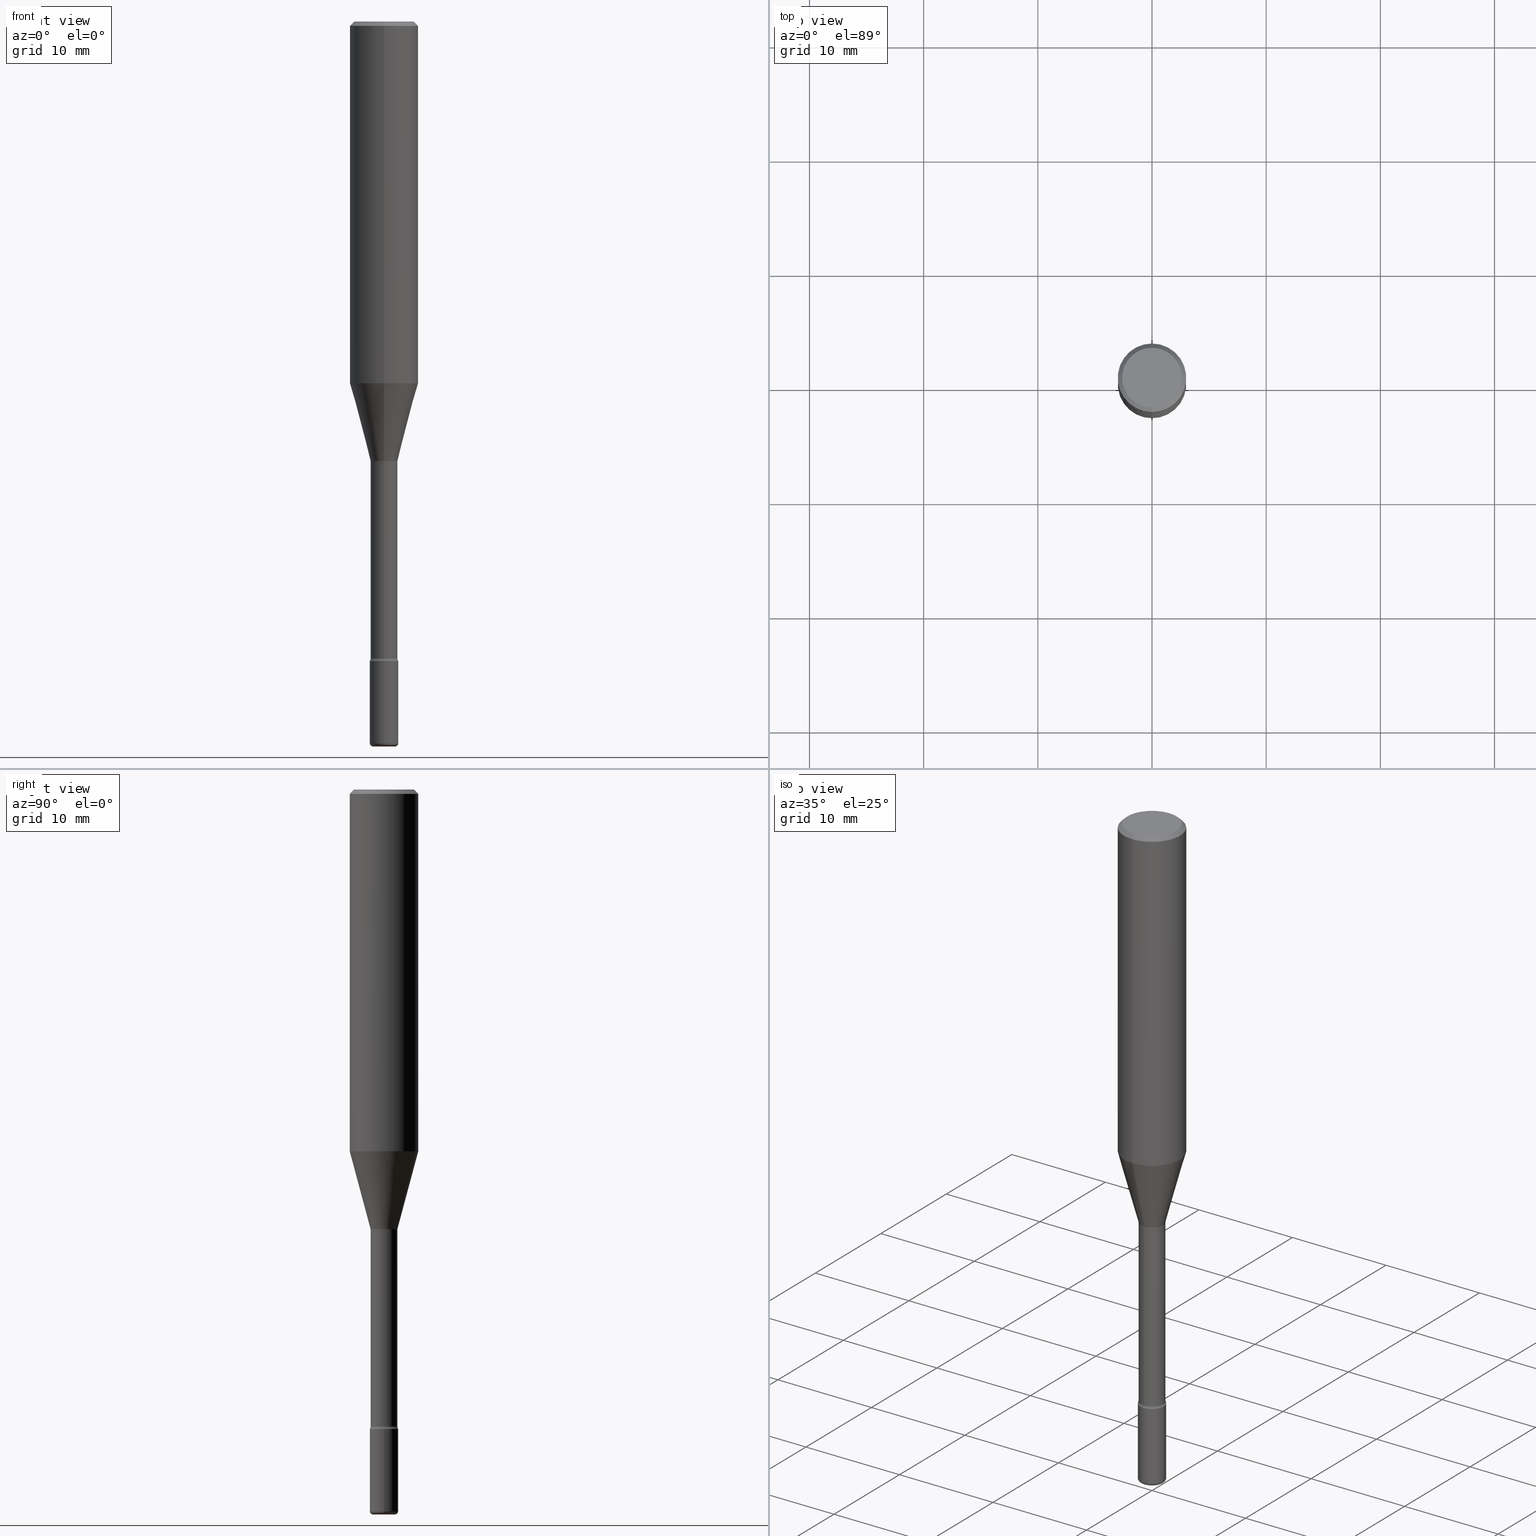
[diagram: canonical four-view strip — front | top / right | iso, engineering-drawing reading convention]
A machine part, canonical four-view strip (front | top / right | iso — engineering-drawing reading convention). The complete STEP part file that produces these views, byte-faithful:
ISO-10303-21;
HEADER;
FILE_DESCRIPTION (( 'STEP AP203' ),
    '1' );
FILE_NAME ('05342.STEP',
    '2024-03-06T20:02:01',
    ( '' ),
    ( '' ),
    'SwSTEP 2.0',
    'SolidWorks 2023',
    '' );
FILE_SCHEMA (( 'CONFIG_CONTROL_DESIGN' ));
ENDSEC;

DATA;
#1 = VECTOR ( 'NONE', #26, 39.37007874015748143 ) ;
#2 = DIRECTION ( 'NONE',  ( -2.445468806185136597E-29, 3.491481338843145583E-15, 1.000000000000000000 ) ) ;
#3 = CARTESIAN_POINT ( 'NONE',  ( -4.277064640082308048E-16, -0.06125000000000776351, -2.195767055356714348 ) ) ;
#4 = AXIS2_PLACEMENT_3D ( 'NONE', #336, #280, #553 ) ;
#5 = DIRECTION ( 'NONE',  ( -6.982962677686265922E-15, -1.000000000000000000, 5.906698364679479320E-15 ) ) ;
#6 = EDGE_CURVE ( 'NONE', #207, #192, #478, .T. ) ;
#7 = DIRECTION ( 'NONE',  ( -2.445721087227316555E-29, 3.491120058031798950E-15, 1.000000000000000000 ) ) ;
#8 = ORIENTED_EDGE ( 'NONE', *, *, #261, .T. ) ;
#9 = CARTESIAN_POINT ( 'NONE',  ( 0.000000000000000000, 0.000000000000000000, 0.000000000000000000 ) ) ;
#10 = EDGE_LOOP ( 'NONE', ( #159, #208, #152, #121 ) ) ;
#11 = CIRCLE ( 'NONE', #398, 0.1180999999999999966 ) ;
#12 = ORIENTED_EDGE ( 'NONE', *, *, #369, .T. ) ;
#13 = DIRECTION ( 'NONE',  ( 2.445721087227315994E-29, -3.491120058031798950E-15, -1.000000000000000000 ) ) ;
#14 = EDGE_CURVE ( 'NONE', #510, #496, #199, .T. ) ;
#15 = EDGE_LOOP ( 'NONE', ( #315, #129 ) ) ;
#16 = COORDINATED_UNIVERSAL_TIME_OFFSET ( 5, 0, .BEHIND. ) ;
#17 = DIRECTION ( 'NONE',  ( -1.000000000000000000, 6.982962677686265922E-15, -4.883557194083112901E-29 ) ) ;
#18 = EDGE_LOOP ( 'NONE', ( #362, #418, #48, #323 ) ) ;
#19 = AXIS2_PLACEMENT_3D ( 'NONE', #9, #355, #451 ) ;
#20 = FACE_OUTER_BOUND ( 'NONE', #211, .T. ) ;
#21 = CIRCLE ( 'NONE', #368, 0.03739999999999999575 ) ;
#22 = CC_DESIGN_DATE_AND_TIME_ASSIGNMENT ( #419, #464, ( #502 ) ) ;
#23 = CARTESIAN_POINT ( 'NONE',  ( 2.611628041455274383E-16, 0.03739999999999126662, -2.500000000000000000 ) ) ;
#24 = CC_DESIGN_PERSON_AND_ORGANIZATION_ASSIGNMENT ( #190, #363, ( #502 ) ) ;
#25 = CIRCLE ( 'NONE', #371, 0.03739999999999999575 ) ;
#26 = DIRECTION ( 'NONE',  ( -2.445468806185136877E-29, 3.491481338843145188E-15, 1.000000000000000000 ) ) ;
#27 = EDGE_CURVE ( 'NONE', #192, #201, #278, .T. ) ;
#28 = ORIENTED_EDGE ( 'NONE', *, *, #332, .F. ) ;
#29 = CARTESIAN_POINT ( 'NONE',  ( 4.352074256531156888E-16, 0.06124999999999242856, -2.195767055356715236 ) ) ;
#30 = ADVANCED_FACE ( 'NONE', ( #258 ), #249, .T. ) ;
#31 = ORIENTED_EDGE ( 'NONE', *, *, #247, .F. ) ;
#32 = FACE_OUTER_BOUND ( 'NONE', #473, .T. ) ;
#33 = ADVANCED_FACE ( 'NONE', ( #385 ), #130, .T. ) ;
#34 = DIRECTION ( 'NONE',  ( -2.438088387897960049E-29, 3.491481338843145188E-15, 1.000000000000000000 ) ) ;
#35 = CARTESIAN_POINT ( 'NONE',  ( -1.169113584055446105E-44, 1.669184350826100908E-30, 4.780733988912460139E-16 ) ) ;
#36 = FACE_OUTER_BOUND ( 'NONE', #316, .T. ) ;
#37 = AXIS2_PLACEMENT_3D ( 'NONE', #484, #482, #122 ) ;
#38 = CARTESIAN_POINT ( 'NONE',  ( -1.169113584055446105E-44, 1.669184350826100908E-30, 4.780733988912460139E-16 ) ) ;
#39 = CIRCLE ( 'NONE', #356, 0.01500000000000002720 ) ;
#40 = FACE_OUTER_BOUND ( 'NONE', #557, .T. ) ;
#41 = CIRCLE ( 'NONE', #136, 0.1180999999999999966 ) ;
#42 = CARTESIAN_POINT ( 'NONE',  ( 5.392081281010064608E-29, -7.696872391942708362E-15, -2.204700000000000326 ) ) ;
#43 = CARTESIAN_POINT ( 'NONE',  ( 5.370233789924947093E-29, -7.665686409721247305E-15, -2.195767055356714792 ) ) ;
#44 = EDGE_CURVE ( 'NONE', #195, #308, #167, .T. ) ;
#45 = CLOSED_SHELL ( 'NONE', ( #271, #75, #439, #509, #360, #566, #506, #466, #304, #483, #88, #374, #30, #477 ) ) ;
#46 = FACE_OUTER_BOUND ( 'NONE', #277, .T. ) ;
#47 = ORIENTED_EDGE ( 'NONE', *, *, #520, .T. ) ;
#48 = ORIENTED_EDGE ( 'NONE', *, *, #445, .T. ) ;
#49 =( NAMED_UNIT ( * ) PLANE_ANGLE_UNIT ( ) SI_UNIT ( $, .RADIAN. ) );
#50 = EDGE_LOOP ( 'NONE', ( #145, #524, #406, #72 ) ) ;
#51 = AXIS2_PLACEMENT_3D ( 'NONE', #412, #488, #270 ) ;
#52 = DIRECTION ( 'NONE',  ( 1.000000000000000000, -6.982962677686261977E-15, 0.000000000000000000 ) ) ;
#53 = LINE ( 'NONE', #174, #379 ) ;
#54 = ORIENTED_EDGE ( 'NONE', *, *, #500, .F. ) ;
#55 = EDGE_LOOP ( 'NONE', ( #429, #92 ) ) ;
#56 = MECHANICAL_CONTEXT ( 'NONE', #341, 'mechanical' ) ;
#57 = DIRECTION ( 'NONE',  ( -2.445721087227316555E-29, 3.491120058031798950E-15, 1.000000000000000000 ) ) ;
#58 = ORIENTED_EDGE ( 'NONE', *, *, #268, .F. ) ;
#59 = ORIENTED_EDGE ( 'NONE', *, *, #148, .T. ) ;
#60 = APPROVAL_STATUS ( 'not_yet_approved' ) ;
#61 = DIRECTION ( 'NONE',  ( 1.000000000000000000, -6.982962677686266711E-15, 4.876176775795935793E-29 ) ) ;
#62 = APPLICATION_PROTOCOL_DEFINITION ( 'international standard', 'config_control_design', 1994, #341 ) ;
#63 = TOROIDAL_SURFACE ( 'NONE', #73, 0.03739999999999999575, 0.01180000000000034494 ) ;
#64 = DIRECTION ( 'NONE',  ( -2.445721087227316555E-29, 3.491120058031798950E-15, 1.000000000000000000 ) ) ;
#65 = DIRECTION ( 'NONE',  ( -2.445468806185136597E-29, 3.491481338843145583E-15, 1.000000000000000000 ) ) ;
#66 = DATE_AND_TIME ( #185, #349 ) ;
#67 = DIRECTION ( 'NONE',  ( -2.445468806185136597E-29, 3.491481338843145583E-15, 1.000000000000000000 ) ) ;
#68 = EDGE_CURVE ( 'NONE', #496, #96, #103, .T. ) ;
#69 = DIRECTION ( 'NONE',  ( -1.000000000000000000, 6.982962677686265922E-15, -4.876176775795935793E-29 ) ) ;
#70 = COORDINATED_UNIVERSAL_TIME_OFFSET ( 5, 0, .BEHIND. ) ;
#71 = CARTESIAN_POINT ( 'NONE',  ( 3.668581630840980928E-31, -5.236680087047708706E-17, -0.01500000000000002720 ) ) ;
#72 = ORIENTED_EDGE ( 'NONE', *, *, #140, .F. ) ;
#73 = AXIS2_PLACEMENT_3D ( 'NONE', #342, #2, #256 ) ;
#74 = AXIS2_PLACEMENT_3D ( 'NONE', #475, #90, #101 ) ;
#75 = ADVANCED_FACE ( 'NONE', ( #85 ), #219, .T. ) ;
#76 = DIRECTION ( 'NONE',  ( -6.982962677686265922E-15, -1.000000000000000000, 3.491120058031800528E-15 ) ) ;
#77 = DESIGN_CONTEXT ( 'detailed design', #228, 'design' ) ;
#78 = CARTESIAN_POINT ( 'NONE',  ( 3.322576887801829239E-16, 0.04676111260565870426, -1.513792501787273537 ) ) ;
#79 = DIRECTION ( 'NONE',  ( -2.445721087227316555E-29, 3.491120058031798950E-15, 1.000000000000000000 ) ) ;
#80 = DIRECTION ( 'NONE',  ( -6.982962677686265922E-15, -1.000000000000000000, 3.487819265831411744E-15 ) ) ;
#81 = CARTESIAN_POINT ( 'NONE',  ( 7.723156721521011834E-16, 0.1031000000000000111, -3.887509258146911569E-16 ) ) ;
#82 = ORIENTED_EDGE ( 'NONE', *, *, #395, .T. ) ;
#83 = DIRECTION ( 'NONE',  ( -6.982962677686265922E-15, -1.000000000000000000, 5.552536572488340164E-15 ) ) ;
#84 = AXIS2_PLACEMENT_3D ( 'NONE', #348, #486, #526 ) ;
#85 = FACE_OUTER_BOUND ( 'NONE', #461, .T. ) ;
#86 = DIRECTION ( 'NONE',  ( -6.982962677686265922E-15, -1.000000000000000000, 3.491120058031799739E-15 ) ) ;
#87 = DIRECTION ( 'NONE',  ( -6.982962677686265922E-15, -1.000000000000000000, 5.842136427980041740E-15 ) ) ;
#88 = ADVANCED_FACE ( 'NONE', ( #426 ), #205, .F. ) ;
#89 = DIRECTION ( 'NONE',  ( -1.000000000000000000, 7.105427357601038146E-15, 0.000000000000000000 ) ) ;
#90 = DIRECTION ( 'NONE',  ( -2.445468806185136597E-29, 3.491481338843145583E-15, 1.000000000000000000 ) ) ;
#91 = DIRECTION ( 'NONE',  ( 2.445721087227316555E-29, -3.491120058031798950E-15, -1.000000000000000000 ) ) ;
#92 = ORIENTED_EDGE ( 'NONE', *, *, #500, .T. ) ;
#93 = ORIENTED_EDGE ( 'NONE', *, *, #319, .T. ) ;
#94 = PLANE ( 'NONE',  #408 ) ;
#95 = CIRCLE ( 'NONE', #427, 0.01500000000000001853 ) ;
#96 = VERTEX_POINT ( 'NONE', #194 ) ;
#97 = ADVANCED_BREP_SHAPE_REPRESENTATION ( '05342', ( #493, #115, #4 ), #421 ) ;
#98 = ORIENTED_EDGE ( 'NONE', *, *, #533, .F. ) ;
#99 = DIRECTION ( 'NONE',  ( -2.445721087227316555E-29, 3.491120058031798950E-15, 1.000000000000000000 ) ) ;
#100 = EDGE_LOOP ( 'NONE', ( #229, #186, #12, #567 ) ) ;
#101 = DIRECTION ( 'NONE',  ( 1.000000000000000000, -6.982962677686260400E-15, 0.000000000000000000 ) ) ;
#102 = AXIS2_PLACEMENT_3D ( 'NONE', #43, #7, #5 ) ;
#103 = CIRCLE ( 'NONE', #133, 0.1180999999999999966 ) ;
#104 = LINE ( 'NONE', #424, #414 ) ;
#105 = ORIENTED_EDGE ( 'NONE', *, *, #6, .F. ) ;
#106 = PRODUCT_RELATED_PRODUCT_CATEGORY ( 'detail', '', ( #322 ) ) ;
#107 = EDGE_LOOP ( 'NONE', ( #248, #411, #377, #31 ) ) ;
#108 = SHAPE_DEFINITION_REPRESENTATION ( #143, #97 ) ;
#109 = CONICAL_SURFACE ( 'NONE', #438, 0.1180999999999999966, 0.7853981633974481680 ) ;
#110 = DIRECTION ( 'NONE',  ( -2.445721087227316555E-29, 3.491120058031798950E-15, 1.000000000000000000 ) ) ;
#111 = ORIENTED_EDGE ( 'NONE', *, *, #319, .F. ) ;
#112 = VERTEX_POINT ( 'NONE', #328 ) ;
#113 = PERSON_AND_ORGANIZATION ( #390, #165 ) ;
#114 = DIRECTION ( 'NONE',  ( 1.000000000000000000, -6.982962677686252511E-15, 4.883557194083107856E-29 ) ) ;
#115 = MANIFOLD_SOLID_BREP ( 'Body-Move/Copy2[2]', #45 ) ;
#116 = TOROIDAL_SURFACE ( 'NONE', #314, 0.06124999999999999889, 0.01500000000000001506 ) ;
#117 = ORIENTED_EDGE ( 'NONE', *, *, #332, .T. ) ;
#118 = APPROVAL_STATUS ( 'not_yet_approved' ) ;
#119 = CARTESIAN_POINT ( 'NONE',  ( 3.051164599389650582E-29, -4.355354332476965725E-15, -1.247552149476176764 ) ) ;
#120 = AXIS2_PLACEMENT_3D ( 'NONE', #23, #556, #69 ) ;
#121 = ORIENTED_EDGE ( 'NONE', *, *, #450, .F. ) ;
#122 = DIRECTION ( 'NONE',  ( -6.982962677686265922E-15, -1.000000000000000000, 5.906698364679479320E-15 ) ) ;
#123 = CIRCLE ( 'NONE', #51, 0.1031000000000000111 ) ;
#124 = CIRCLE ( 'NONE', #74, 0.04920000000000000762 ) ;
#125 = DIRECTION ( 'NONE',  ( -2.445721087227316555E-29, 3.491120058031798950E-15, 1.000000000000000000 ) ) ;
#126 = CARTESIAN_POINT ( 'NONE',  ( 8.246878922347483612E-16, 0.1180999999999999411, -0.01500000000000044006 ) ) ;
#127 = ORIENTED_EDGE ( 'NONE', *, *, #282, .T. ) ;
#128 = DIRECTION ( 'NONE',  ( -6.982962677686265922E-15, -1.000000000000000000, 5.842136427980041740E-15 ) ) ;
#129 = ORIENTED_EDGE ( 'NONE', *, *, #187, .F. ) ;
#130 = PLANE ( 'NONE',  #173 ) ;
#131 = CARTESIAN_POINT ( 'NONE',  ( 0.04920000000000017415, -9.031065631051680405E-15, -2.488199999999999967 ) ) ;
#132 = APPROVAL ( #153, 'UNSPECIFIED' ) ;
#133 = AXIS2_PLACEMENT_3D ( 'NONE', #487, #260, #389 ) ;
#134 = EDGE_CURVE ( 'NONE', #415, #112, #21, .T. ) ;
#135 = EDGE_CURVE ( 'NONE', #201, #192, #571, .T. ) ;
#136 = AXIS2_PLACEMENT_3D ( 'NONE', #119, #64, #479 ) ;
#137 = DIRECTION ( 'NONE',  ( 6.982962677686265922E-15, 1.000000000000000000, -3.491120058031798950E-15 ) ) ;
#138 = CARTESIAN_POINT ( 'NONE',  ( 7.199434520694541042E-16, 0.1031000000000000111, -1.353060024532617206E-16 ) ) ;
#139 = CIRCLE ( 'NONE', #217, 0.04624999999999999944 ) ;
#140 = EDGE_CURVE ( 'NONE', #207, #403, #124, .T. ) ;
#141 = CARTESIAN_POINT ( 'NONE',  ( -0.03739999999999999575, -8.421760884135237702E-15, -2.488199999999999967 ) ) ;
#142 = VECTOR ( 'NONE', #331, 39.37007874015748143 ) ;
#143 = PRODUCT_DEFINITION_SHAPE ( 'NONE', 'NONE',  #502 ) ;
#144 = ORIENTED_EDGE ( 'NONE', *, *, #234, .F. ) ;
#145 = ORIENTED_EDGE ( 'NONE', *, *, #541, .F. ) ;
#146 = AXIS2_PLACEMENT_3D ( 'NONE', #227, #231, #407 ) ;
#147 = PERSON_AND_ORGANIZATION ( #390, #165 ) ;
#148 = EDGE_CURVE ( 'NONE', #181, #413, #431, .T. ) ;
#149 = AXIS2_PLACEMENT_3D ( 'NONE', #446, #562, #76 ) ;
#150 = CARTESIAN_POINT ( 'NONE',  ( 3.711809231253478318E-29, -5.298384892084059115E-15, -1.517674787463811237 ) ) ;
#151 = EDGE_LOOP ( 'NONE', ( #504, #547 ) ) ;
#152 = ORIENTED_EDGE ( 'NONE', *, *, #268, .T. ) ;
#153 = APPROVAL_STATUS ( 'not_yet_approved' ) ;
#154 = CARTESIAN_POINT ( 'NONE',  ( -4.277064640082466314E-16, -0.06125000000000530020, -1.517674787463811015 ) ) ;
#155 = ADVANCED_FACE ( 'NONE', ( #420 ), #160, .T. ) ;
#156 = COORDINATED_UNIVERSAL_TIME_OFFSET ( 5, 0, .BEHIND. ) ;
#157 = LINE ( 'NONE', #474, #1 ) ;
#158 = AXIS2_PLACEMENT_3D ( 'NONE', #141, #320, #89 ) ;
#159 = ORIENTED_EDGE ( 'NONE', *, *, #495, .F. ) ;
#160 = CYLINDRICAL_SURFACE ( 'NONE', #452, 0.04920000000000000068 ) ;
#161 = EDGE_CURVE ( 'NONE', #460, #180, #551, .T. ) ;
#162 = CARTESIAN_POINT ( 'NONE',  ( -8.246878922347475723E-16, -0.1181000000000000522, -0.01499999999999961607 ) ) ;
#163 = UNCERTAINTY_MEASURE_WITH_UNIT (LENGTH_MEASURE( 1.000000000000000082E-05 ), #317, 'distance_accuracy_value', 'NONE');
#164 = DIRECTION ( 'NONE',  ( -2.445721087227316555E-29, 3.491120058031798950E-15, 1.000000000000000000 ) ) ;
#165 = ORGANIZATION ( 'UNSPECIFIED', 'UNSPECIFIED', '' ) ;
#166 = LINE ( 'NONE', #126, #519 ) ;
#167 = CIRCLE ( 'NONE', #494, 0.1180999999999999966 ) ;
#168 = CYLINDRICAL_SURFACE ( 'NONE', #146, 0.1180999999999999966 ) ;
#169 = CIRCLE ( 'NONE', #221, 0.01180000000000034494 ) ;
#170 = CARTESIAN_POINT ( 'NONE',  ( -8.102248135368174406E-16, -0.1181000000000000522, -0.01499999999999961607 ) ) ;
#171 = EDGE_CURVE ( 'NONE', #380, #413, #422, .T. ) ;
#172 = CARTESIAN_POINT ( 'NONE',  ( -3.229620238429526702E-16, -0.04625000000000530076, -1.517674787463811015 ) ) ;
#173 = AXIS2_PLACEMENT_3D ( 'NONE', #266, #34, #309 ) ;
#174 = CARTESIAN_POINT ( 'NONE',  ( 8.391509709326781971E-16, 0.1180999999999999966, 6.577212003769061022E-17 ) ) ;
#175 = CARTESIAN_POINT ( 'NONE',  ( 3.702314243307729011E-29, -5.284831366687687522E-15, -1.513792501787273315 ) ) ;
#176 = ORIENTED_EDGE ( 'NONE', *, *, #135, .T. ) ;
#177 = ORIENTED_EDGE ( 'NONE', *, *, #397, .T. ) ;
#178 = CARTESIAN_POINT ( 'NONE',  ( 3.711809231253478318E-29, -5.298384892084059115E-15, -1.517674787463811237 ) ) ;
#179 = AXIS2_PLACEMENT_3D ( 'NONE', #218, #527, #386 ) ;
#180 = VERTEX_POINT ( 'NONE', #200 ) ;
#181 = VERTEX_POINT ( 'NONE', #417 ) ;
#182 = DIRECTION ( 'NONE',  ( -2.445721087227316555E-29, 3.491120058031798950E-15, 1.000000000000000000 ) ) ;
#183 = ORIENTED_EDGE ( 'NONE', *, *, #204, .T. ) ;
#184 = ORIENTED_EDGE ( 'NONE', *, *, #401, .T. ) ;
#185 = CALENDAR_DATE ( 2024, 6, 3 ) ;
#186 = ORIENTED_EDGE ( 'NONE', *, *, #392, .T. ) ;
#187 = EDGE_CURVE ( 'NONE', #112, #415, #25, .T. ) ;
#188 = AXIS2_PLACEMENT_3D ( 'NONE', #485, #346, #128 ) ;
#189 = ORIENTED_EDGE ( 'NONE', *, *, #44, .T. ) ;
#190 = PERSON_AND_ORGANIZATION ( #390, #165 ) ;
#191 = CARTESIAN_POINT ( 'NONE',  ( 6.113672015462842613E-29, -8.728703347107864943E-15, -2.500000000000000000 ) ) ;
#192 = VERTEX_POINT ( 'NONE', #550 ) ;
#193 = CONICAL_SURFACE ( 'NONE', #409, 0.1180999999999999966, 0.7853981633974481680 ) ;
#194 = CARTESIAN_POINT ( 'NONE',  ( -8.246878922347172998E-16, -0.1181000000000043126, -1.247552149476176320 ) ) ;
#195 = VERTEX_POINT ( 'NONE', #162 ) ;
#196 = CALENDAR_DATE ( 2024, 6, 3 ) ;
#197 = CLOSED_SHELL ( 'NONE', ( #155, #410, #33, #301, #275, #540 ) ) ;
#198 = SECURITY_CLASSIFICATION_LEVEL ( 'unclassified' ) ;
#199 = LINE ( 'NONE', #78, #436 ) ;
#200 = CARTESIAN_POINT ( 'NONE',  ( -7.587710785535310407E-16, -0.1031000000000000111, 3.311180301514658338E-16 ) ) ;
#201 = VERTEX_POINT ( 'NONE', #286 ) ;
#202 = ORIENTED_EDGE ( 'NONE', *, *, #369, .F. ) ;
#203 = FACE_OUTER_BOUND ( 'NONE', #15, .T. ) ;
#204 = EDGE_CURVE ( 'NONE', #433, #413, #347, .T. ) ;
#205 = PLANE ( 'NONE',  #507 ) ;
#206 = LOCAL_TIME ( 15, 2, 1.000000000000000000, #330 ) ;
#207 = VERTEX_POINT ( 'NONE', #325 ) ;
#208 = ORIENTED_EDGE ( 'NONE', *, *, #68, .T. ) ;
#209 = DIRECTION ( 'NONE',  ( 1.000000000000000000, -6.982962677686250933E-15, 0.000000000000000000 ) ) ;
#210 = VECTOR ( 'NONE', #339, 39.37007874015748143 ) ;
#211 = EDGE_LOOP ( 'NONE', ( #358, #283, #183, #542 ) ) ;
#212 = CARTESIAN_POINT ( 'NONE',  ( 5.392081281010064608E-29, -7.696872391942708362E-15, -2.204700000000000326 ) ) ;
#213 = CIRCLE ( 'NONE', #361, 0.01500000000000002720 ) ;
#214 = DIRECTION ( 'NONE',  ( -6.982962677686265922E-15, -1.000000000000000000, 3.491120058031800528E-15 ) ) ;
#215 = CARTESIAN_POINT ( 'NONE',  ( -3.265311040923994566E-16, -0.04676111260566927219, -1.513792501787273093 ) ) ;
#216 = CIRCLE ( 'NONE', #37, 0.04625000000000006883 ) ;
#217 = AXIS2_PLACEMENT_3D ( 'NONE', #178, #99, #399 ) ;
#218 = CARTESIAN_POINT ( 'NONE',  ( 5.369679839523838347E-29, -7.666479698224534368E-15, -2.195767055356714792 ) ) ;
#219 = CYLINDRICAL_SURFACE ( 'NONE', #149, 0.04625000000000003414 ) ;
#220 = DIRECTION ( 'NONE',  ( 4.937700262164546464E-15, 0.7071067811865447972, -0.7071067811865500152 ) ) ;
#221 = AXIS2_PLACEMENT_3D ( 'NONE', #290, #518, #340 ) ;
#222 = DIRECTION ( 'NONE',  ( -2.445721087227316555E-29, 3.491120058031798950E-15, 1.000000000000000000 ) ) ;
#223 = EDGE_CURVE ( 'NONE', #545, #522, #213, .T. ) ;
#224 = FACE_OUTER_BOUND ( 'NONE', #405, .T. ) ;
#225 = VECTOR ( 'NONE', #306, 39.37007874015748143 ) ;
#226 = AXIS2_PLACEMENT_3D ( 'NONE', #35, #430, #214 ) ;
#227 = CARTESIAN_POINT ( 'NONE',  ( -1.169113584055446105E-44, 1.669184350826100908E-30, 4.780733988912460139E-16 ) ) ;
#228 = APPLICATION_CONTEXT ( 'configuration controlled 3d designs of mechanical parts and assemblies' ) ;
#229 = ORIENTED_EDGE ( 'NONE', *, *, #14, .F. ) ;
#230 = ORIENTED_EDGE ( 'NONE', *, *, #44, .F. ) ;
#231 = DIRECTION ( 'NONE',  ( -2.445721087227316555E-29, 3.491120058031798950E-15, 1.000000000000000000 ) ) ;
#232 = CIRCLE ( 'NONE', #302, 0.04920000000000000068 ) ;
#233 = EDGE_LOOP ( 'NONE', ( #144, #111, #255, #47 ) ) ;
#234 = EDGE_CURVE ( 'NONE', #510, #433, #95, .T. ) ;
#235 = ORIENTED_EDGE ( 'NONE', *, *, #397, .F. ) ;
#236 = APPLICATION_PROTOCOL_DEFINITION ( 'international standard', 'config_control_design', 1994, #228 ) ;
#237 = EDGE_CURVE ( 'NONE', #545, #433, #253, .T. ) ;
#238 = CARTESIAN_POINT ( 'NONE',  ( 0.000000000000000000, 0.000000000000000000, 0.000000000000000000 ) ) ;
#239 = PERSON_AND_ORGANIZATION ( #390, #165 ) ;
#240 = DIRECTION ( 'NONE',  ( -6.982962677686263555E-15, -1.000000000000000000, 0.000000000000000000 ) ) ;
#241 = SECURITY_CLASSIFICATION ( '', '', #198 ) ;
#242 = CC_DESIGN_SECURITY_CLASSIFICATION ( #241, ( #459 ) ) ;
#243 = APPROVAL_DATE_TIME ( #293, #394 ) ;
#244 = AXIS2_PLACEMENT_3D ( 'NONE', #154, #17, #240 ) ;
#245 = PLANE ( 'NONE',  #120 ) ;
#246 = PERSON_AND_ORGANIZATION_ROLE ( 'design_supplier' ) ;
#247 = EDGE_CURVE ( 'NONE', #415, #403, #169, .T. ) ;
#248 = ORIENTED_EDGE ( 'NONE', *, *, #134, .T. ) ;
#249 = CYLINDRICAL_SURFACE ( 'NONE', #226, 0.04625000000000003414 ) ;
#250 = FACE_OUTER_BOUND ( 'NONE', #18, .T. ) ;
#251 = VECTOR ( 'NONE', #267, 39.37007874015748854 ) ;
#252 = ORIENTED_EDGE ( 'NONE', *, *, #223, .T. ) ;
#253 = LINE ( 'NONE', #560, #142 ) ;
#254 = CC_DESIGN_APPROVAL ( #132, ( #459 ) ) ;
#255 = ORIENTED_EDGE ( 'NONE', *, *, #171, .T. ) ;
#256 = DIRECTION ( 'NONE',  ( 1.000000000000000000, -6.982962677686252511E-15, 4.883557194083107856E-29 ) ) ;
#257 = AXIS2_PLACEMENT_3D ( 'NONE', #425, #457, #52 ) ;
#258 = FACE_OUTER_BOUND ( 'NONE', #499, .T. ) ;
#259 = CARTESIAN_POINT ( 'NONE',  ( 3.702314243307729011E-29, -5.284831366687687522E-15, -1.513792501787273315 ) ) ;
#260 = DIRECTION ( 'NONE',  ( -2.445721087227316555E-29, 3.491120058031798950E-15, 1.000000000000000000 ) ) ;
#261 = EDGE_CURVE ( 'NONE', #403, #201, #157, .T. ) ;
#262 = DIRECTION ( 'NONE',  ( -6.982962677686265922E-15, -1.000000000000000000, 5.842136427980041740E-15 ) ) ;
#263 = AXIS2_PLACEMENT_3D ( 'NONE', #175, #274, #453 ) ;
#264 = DIRECTION ( 'NONE',  ( -6.982962677686265922E-15, -1.000000000000000000, 5.552536572488340164E-15 ) ) ;
#265 = APPROVAL_PERSON_ORGANIZATION ( #476, #503, #365 ) ;
#266 = CARTESIAN_POINT ( 'NONE',  ( 5.391525076996371277E-29, -7.697668907747483125E-15, -2.204700000000000326 ) ) ;
#267 = DIRECTION ( 'NONE',  ( -4.851104656540962697E-15, -0.7071067811865497932, -0.7071067811865451302 ) ) ;
#268 = EDGE_CURVE ( 'NONE', #96, #195, #104, .T. ) ;
#269 = CARTESIAN_POINT ( 'NONE',  ( 5.857043298564459926E-16, 0.04676111260565870426, -1.513792501787273537 ) ) ;
#270 = DIRECTION ( 'NONE',  ( -6.982962677686265922E-15, -1.000000000000000000, 3.491120058031798950E-15 ) ) ;
#271 = ADVANCED_FACE ( 'NONE', ( #20 ), #382, .F. ) ;
#272 = CARTESIAN_POINT ( 'NONE',  ( -3.435617637421105364E-16, -0.04920000000000771673, -2.204699999999999882 ) ) ;
#273 = ORIENTED_EDGE ( 'NONE', *, *, #520, .F. ) ;
#274 = DIRECTION ( 'NONE',  ( -2.445721087227316555E-29, 3.491120058031798950E-15, 1.000000000000000000 ) ) ;
#275 = ADVANCED_FACE ( 'NONE', ( #465 ), #318, .T. ) ;
#276 = CIRCLE ( 'NONE', #158, 0.01180000000000034494 ) ;
#277 = EDGE_LOOP ( 'NONE', ( #105, #454, #8, #375 ) ) ;
#278 = CIRCLE ( 'NONE', #400, 0.04920000000000000068 ) ;
#279 = EDGE_LOOP ( 'NONE', ( #176, #298 ) ) ;
#280 = DIRECTION ( 'NONE',  ( 0.000000000000000000, 0.000000000000000000, 1.000000000000000000 ) ) ;
#281 = CARTESIAN_POINT ( 'NONE',  ( -3.229620238429900424E-16, -0.04625000000000003414, 6.395377015752169353E-16 ) ) ;
#282 = EDGE_CURVE ( 'NONE', #96, #496, #41, .T. ) ;
#283 = ORIENTED_EDGE ( 'NONE', *, *, #234, .T. ) ;
#284 = CIRCLE ( 'NONE', #188, 0.04676111260566399169 ) ;
#285 = DATE_AND_TIME ( #548, #561 ) ;
#286 = CARTESIAN_POINT ( 'NONE',  ( 0.04920000000000000068, -8.041230671489647649E-15, -2.204700000000000326 ) ) ;
#287 = ORIENTED_EDGE ( 'NONE', *, *, #495, .T. ) ;
#288 = PERSON_AND_ORGANIZATION_ROLE ( 'creator' ) ;
#289 = CC_DESIGN_PERSON_AND_ORGANIZATION_ASSIGNMENT ( #147, #546, ( #241 ) ) ;
#290 = CARTESIAN_POINT ( 'NONE',  ( 0.03739999999999999575, -8.948666671454982281E-15, -2.488199999999999967 ) ) ;
#291 = CARTESIAN_POINT ( 'NONE',  ( 6.113672015462842613E-29, -8.728703347107864943E-15, -2.500000000000000000 ) ) ;
#292 = APPROVAL_PERSON_ORGANIZATION ( #521, #132, #511 ) ;
#293 = DATE_AND_TIME ( #416, #470 ) ;
#294 = DIRECTION ( 'NONE',  ( -2.445721087227316555E-29, 3.491120058031798950E-15, 1.000000000000000000 ) ) ;
#295 = ORIENTED_EDGE ( 'NONE', *, *, #14, .T. ) ;
#296 = AXIS2_PLACEMENT_3D ( 'NONE', #370, #334, #114 ) ;
#297 = DIRECTION ( 'NONE',  ( -6.982962677686265922E-15, -1.000000000000000000, 3.491120058031798950E-15 ) ) ;
#298 = ORIENTED_EDGE ( 'NONE', *, *, #27, .T. ) ;
#299 = DIRECTION ( 'NONE',  ( 1.000000000000000000, -6.982962677686261977E-15, 0.000000000000000000 ) ) ;
#300 = FACE_OUTER_BOUND ( 'NONE', #10, .T. ) ;
#301 = ADVANCED_FACE ( 'NONE', ( #203 ), #245, .T. ) ;
#302 = AXIS2_PLACEMENT_3D ( 'NONE', #212, #222, #83 ) ;
#303 = CC_DESIGN_APPROVAL ( #503, ( #241 ) ) ;
#304 = ADVANCED_FACE ( 'NONE', ( #250 ), #109, .T. ) ;
#305 = DIRECTION ( 'NONE',  ( -6.982962677686265922E-15, -1.000000000000000000, 3.487819265831411744E-15 ) ) ;
#306 = DIRECTION ( 'NONE',  ( -1.807323732225327773E-15, -0.2588190451025178529, 0.9659258262890690894 ) ) ;
#307 = LINE ( 'NONE', #215, #225 ) ;
#308 = VERTEX_POINT ( 'NONE', #531 ) ;
#309 = DIRECTION ( 'NONE',  ( 1.000000000000000000, -6.982962677686265922E-15, 4.876176775795935793E-29 ) ) ;
#310 = FACE_OUTER_BOUND ( 'NONE', #107, .T. ) ;
#311 = DIRECTION ( 'NONE',  ( -6.982962677686265922E-15, -1.000000000000000000, 3.491120058031798950E-15 ) ) ;
#312 = CARTESIAN_POINT ( 'NONE',  ( 8.391509709327088641E-16, 0.1180999999999956807, -1.247552149476177430 ) ) ;
#313 = DIRECTION ( 'NONE',  ( -2.445721087227316555E-29, 3.491120058031798950E-15, 1.000000000000000000 ) ) ;
#314 = AXIS2_PLACEMENT_3D ( 'NONE', #501, #313, #311 ) ;
#315 = ORIENTED_EDGE ( 'NONE', *, *, #134, .F. ) ;
#316 = EDGE_LOOP ( 'NONE', ( #127, #287, #230, #58 ) ) ;
#317 =( CONVERSION_BASED_UNIT ( 'INCH', #404 ) LENGTH_UNIT ( ) NAMED_UNIT ( #456 ) );
#318 = TOROIDAL_SURFACE ( 'NONE', #296, 0.03739999999999999575, 0.01180000000000034494 ) ;
#319 = EDGE_CURVE ( 'NONE', #380, #510, #284, .T. ) ;
#320 = DIRECTION ( 'NONE',  ( 7.105427357601001859E-15, 1.000000000000000000, -3.491481338843145583E-15 ) ) ;
#321 = TOROIDAL_SURFACE ( 'NONE', #335, 0.06125000000000009603, 0.01500000000000002373 ) ;
#322 = PRODUCT ( '05342', '05342', '', ( #56 ) ) ;
#323 = ORIENTED_EDGE ( 'NONE', *, *, #450, .T. ) ;
#324 = ORIENTED_EDGE ( 'NONE', *, *, #533, .T. ) ;
#325 = CARTESIAN_POINT ( 'NONE',  ( -0.04920000000000017415, -8.337916841315544070E-15, -2.488199999999999967 ) ) ;
#326 = ORIENTED_EDGE ( 'NONE', *, *, #148, .F. ) ;
#327 = CC_DESIGN_PERSON_AND_ORGANIZATION_ASSIGNMENT ( #113, #423, ( #322 ) ) ;
#328 = CARTESIAN_POINT ( 'NONE',  ( -0.03739999999999999575, -8.400438602624566206E-15, -2.500000000000000000 ) ) ;
#329 = CC_DESIGN_DATE_AND_TIME_ASSIGNMENT ( #66, #428, ( #241 ) ) ;
#330 = COORDINATED_UNIVERSAL_TIME_OFFSET ( 5, 0, .BEHIND. ) ;
#331 = DIRECTION ( 'NONE',  ( -2.445721087227316555E-29, 3.491120058031798950E-15, 1.000000000000000000 ) ) ;
#332 = EDGE_CURVE ( 'NONE', #181, #545, #216, .T. ) ;
#333 = APPROVAL_DATE_TIME ( #285, #503 ) ;
#334 = DIRECTION ( 'NONE',  ( -2.445468806185136597E-29, 3.491481338843145583E-15, 1.000000000000000000 ) ) ;
#335 = AXIS2_PLACEMENT_3D ( 'NONE', #396, #391, #384 ) ;
#336 = CARTESIAN_POINT ( 'NONE',  ( 0.000000000000000000, 0.000000000000000000, 0.000000000000000000 ) ) ;
#337 = ORIENTED_EDGE ( 'NONE', *, *, #6, .T. ) ;
#338 = DIRECTION ( 'NONE',  ( -2.445721087227316555E-29, 3.491120058031798950E-15, 1.000000000000000000 ) ) ;
#339 = DIRECTION ( 'NONE',  ( -2.445468806185136877E-29, 3.491481338843145188E-15, 1.000000000000000000 ) ) ;
#340 = DIRECTION ( 'NONE',  ( 1.000000000000000000, -6.982962677686343230E-15, 0.000000000000000000 ) ) ;
#341 = APPLICATION_CONTEXT ( 'configuration controlled 3d designs of mechanical parts and assemblies' ) ;
#342 = CARTESIAN_POINT ( 'NONE',  ( 6.084815483549856310E-29, -8.687503867309514303E-15, -2.488199999999999967 ) ) ;
#343 = CIRCLE ( 'NONE', #367, 0.04920000000000000068 ) ;
#344 = CARTESIAN_POINT ( 'NONE',  ( 3.286260152891002704E-16, 0.04624999999999469813, -1.517674787463811459 ) ) ;
#345 = AXIS2_PLACEMENT_3D ( 'NONE', #565, #554, #469 ) ;
#346 = DIRECTION ( 'NONE',  ( -2.445721087227316555E-29, 3.491120058031798950E-15, 1.000000000000000000 ) ) ;
#347 = CIRCLE ( 'NONE', #463, 0.04624999999999999944 ) ;
#348 = CARTESIAN_POINT ( 'NONE',  ( 6.084815483549856310E-29, -8.687503867309514303E-15, -2.488199999999999967 ) ) ;
#349 = LOCAL_TIME ( 15, 2, 1.000000000000000000, #555 ) ;
#350 = CARTESIAN_POINT ( 'NONE',  ( 3.495870259940232839E-16, 0.04919999999999231932, -2.204700000000000326 ) ) ;
#351 = EDGE_CURVE ( 'NONE', #180, #195, #444, .T. ) ;
#352 = CARTESIAN_POINT ( 'NONE',  ( 3.702314243307729011E-29, -5.284831366687687522E-15, -1.513792501787273315 ) ) ;
#353 = FACE_OUTER_BOUND ( 'NONE', #55, .T. ) ;
#354 = CARTESIAN_POINT ( 'NONE',  ( 3.435617637422181666E-16, 0.04919999999999229851, -2.204700000000000326 ) ) ;
#355 = DIRECTION ( 'NONE',  ( -2.445468806185136597E-29, 3.491481338843145583E-15, 1.000000000000000000 ) ) ;
#356 = AXIS2_PLACEMENT_3D ( 'NONE', #3, #440, #529 ) ;
#357 = EDGE_LOOP ( 'NONE', ( #467, #337, #515, #508 ) ) ;
#358 = ORIENTED_EDGE ( 'NONE', *, *, #392, .F. ) ;
#359 = CYLINDRICAL_SURFACE ( 'NONE', #19, 0.04920000000000000068 ) ;
#360 = ADVANCED_FACE ( 'NONE', ( #36 ), #530, .T. ) ;
#361 = AXIS2_PLACEMENT_3D ( 'NONE', #29, #523, #434 ) ;
#362 = ORIENTED_EDGE ( 'NONE', *, *, #351, .F. ) ;
#363 = PERSON_AND_ORGANIZATION_ROLE ( 'creator' ) ;
#364 = DIRECTION ( 'NONE',  ( -6.982962677686265922E-15, -1.000000000000000000, 3.491120058031798950E-15 ) ) ;
#365 = APPROVAL_ROLE ( '' ) ;
#366 = DIRECTION ( 'NONE',  ( -2.445468806185136597E-29, 3.491481338843145583E-15, 1.000000000000000000 ) ) ;
#367 = AXIS2_PLACEMENT_3D ( 'NONE', #42, #568, #264 ) ;
#368 = AXIS2_PLACEMENT_3D ( 'NONE', #291, #65, #498 ) ;
#369 = EDGE_CURVE ( 'NONE', #380, #96, #307, .T. ) ;
#370 = CARTESIAN_POINT ( 'NONE',  ( 6.084815483549856310E-29, -8.687503867309514303E-15, -2.488199999999999967 ) ) ;
#371 = AXIS2_PLACEMENT_3D ( 'NONE', #191, #366, #209 ) ;
#372 = PERSON_AND_ORGANIZATION ( #390, #165 ) ;
#373 = CARTESIAN_POINT ( 'NONE',  ( 4.352074256530983831E-16, 0.06124999999999469064, -1.517674787463811459 ) ) ;
#374 = ADVANCED_FACE ( 'NONE', ( #32 ), #532, .F. ) ;
#375 = ORIENTED_EDGE ( 'NONE', *, *, #27, .F. ) ;
#376 = CALENDAR_DATE ( 2024, 6, 3 ) ;
#377 = ORIENTED_EDGE ( 'NONE', *, *, #448, .F. ) ;
#378 = DIRECTION ( 'NONE',  ( -6.982962677686265922E-15, -1.000000000000000000, 5.906698364679487997E-15 ) ) ;
#379 = VECTOR ( 'NONE', #543, 39.37007874015748143 ) ;
#380 = VERTEX_POINT ( 'NONE', #569 ) ;
#381 = DIRECTION ( 'NONE',  ( -2.445468806185136597E-29, 3.491481338843145583E-15, 1.000000000000000000 ) ) ;
#382 = TOROIDAL_SURFACE ( 'NONE', #544, 0.06124999999999999889, 0.01500000000000001506 ) ;
#383 = EDGE_LOOP ( 'NONE', ( #54, #537, #189, #497 ) ) ;
#384 = DIRECTION ( 'NONE',  ( -6.982962677686265922E-15, -1.000000000000000000, 3.491120058031798950E-15 ) ) ;
#385 = FACE_OUTER_BOUND ( 'NONE', #279, .T. ) ;
#386 = DIRECTION ( 'NONE',  ( -6.982962677686265922E-15, -1.000000000000000000, 3.491120058031798950E-15 ) ) ;
#387 = CC_DESIGN_PERSON_AND_ORGANIZATION_ASSIGNMENT ( #468, #246, ( #459 ) ) ;
#388 = CONICAL_SURFACE ( 'NONE', #481, 0.04676111260566399169, 0.2617993877991499074 ) ;
#389 = DIRECTION ( 'NONE',  ( -6.982962677686265922E-15, -1.000000000000000000, 4.626330217890369336E-15 ) ) ;
#390 = PERSON ( 'UNSPECIFIED', 'UNSPECIFIED', 'UNSPECIFIED', ('UNSPECIFIED'), ('UNSPECIFIED'), ('UNSPECIFIED') ) ;
#391 = DIRECTION ( 'NONE',  ( -2.445721087227316555E-29, 3.491120058031798950E-15, 1.000000000000000000 ) ) ;
#392 = EDGE_CURVE ( 'NONE', #510, #380, #570, .T. ) ;
#393 = DIRECTION ( 'NONE',  ( 6.982962677686265922E-15, 1.000000000000000000, -3.487819265831411744E-15 ) ) ;
#394 = APPROVAL ( #60, 'UNSPECIFIED' ) ;
#395 = EDGE_CURVE ( 'NONE', #513, #522, #343, .T. ) ;
#396 = CARTESIAN_POINT ( 'NONE',  ( 5.369679839523838347E-29, -7.666479698224534368E-15, -2.195767055356714792 ) ) ;
#397 = EDGE_CURVE ( 'NONE', #181, #513, #39, .T. ) ;
#398 = AXIS2_PLACEMENT_3D ( 'NONE', #572, #164, #305 ) ;
#399 = DIRECTION ( 'NONE',  ( -6.982962677686265922E-15, -1.000000000000000000, 5.906698364679487997E-15 ) ) ;
#400 = AXIS2_PLACEMENT_3D ( 'NONE', #558, #67, #299 ) ;
#401 = EDGE_CURVE ( 'NONE', #522, #513, #232, .T. ) ;
#402 = FACE_OUTER_BOUND ( 'NONE', #383, .T. ) ;
#403 = VERTEX_POINT ( 'NONE', #131 ) ;
#404 = LENGTH_MEASURE_WITH_UNIT ( LENGTH_MEASURE( 0.02539999999999999897 ), #458 );
#405 = EDGE_LOOP ( 'NONE', ( #93, #295, #480, #202 ) ) ;
#406 = ORIENTED_EDGE ( 'NONE', *, *, #247, .T. ) ;
#407 = DIRECTION ( 'NONE',  ( -6.982962677686265922E-15, -1.000000000000000000, 3.491120058031799739E-15 ) ) ;
#408 = AXIS2_PLACEMENT_3D ( 'NONE', #138, #13, #137 ) ;
#409 = AXIS2_PLACEMENT_3D ( 'NONE', #489, #91, #449 ) ;
#410 = ADVANCED_FACE ( 'NONE', ( #310 ), #63, .T. ) ;
#411 = ORIENTED_EDGE ( 'NONE', *, *, #541, .T. ) ;
#412 = CARTESIAN_POINT ( 'NONE',  ( 7.059760297607168192E-46, -1.004289602807351628E-31, -2.881644783161265537E-17 ) ) ;
#413 = VERTEX_POINT ( 'NONE', #172 ) ;
#414 = VECTOR ( 'NONE', #57, 39.37007874015748143 ) ;
#415 = VERTEX_POINT ( 'NONE', #437 ) ;
#416 = CALENDAR_DATE ( 2024, 6, 3 ) ;
#417 = CARTESIAN_POINT ( 'NONE',  ( -3.229620238429365971E-16, -0.04625000000000773631, -2.195767055356714348 ) ) ;
#418 = ORIENTED_EDGE ( 'NONE', *, *, #161, .F. ) ;
#419 = DATE_AND_TIME ( #196, #538 ) ;
#420 = FACE_OUTER_BOUND ( 'NONE', #357, .T. ) ;
#421 =( GEOMETRIC_REPRESENTATION_CONTEXT ( 3 ) GLOBAL_UNCERTAINTY_ASSIGNED_CONTEXT ( ( #163 ) ) GLOBAL_UNIT_ASSIGNED_CONTEXT ( ( #317, #49, #535 ) ) REPRESENTATION_CONTEXT ( 'NONE', 'WORKASPACE' ) );
#422 = CIRCLE ( 'NONE', #244, 0.01500000000000001853 ) ;
#423 = PERSON_AND_ORGANIZATION_ROLE ( 'design_owner' ) ;
#424 = CARTESIAN_POINT ( 'NONE',  ( -8.246878922347479668E-16, -0.1180999999999999966, 8.903746777448015409E-16 ) ) ;
#425 = CARTESIAN_POINT ( 'NONE',  ( 5.391525076996371277E-29, -7.697668907747483125E-15, -2.204700000000000326 ) ) ;
#426 = FACE_OUTER_BOUND ( 'NONE', #151, .T. ) ;
#427 = AXIS2_PLACEMENT_3D ( 'NONE', #373, #462, #512 ) ;
#428 = DATE_TIME_ROLE ( 'classification_date' ) ;
#429 = ORIENTED_EDGE ( 'NONE', *, *, #161, .T. ) ;
#430 = DIRECTION ( 'NONE',  ( -2.445721087227316555E-29, 3.491120058031798950E-15, 1.000000000000000000 ) ) ;
#431 = LINE ( 'NONE', #281, #534 ) ;
#432 = DATE_AND_TIME ( #376, #206 ) ;
#433 = VERTEX_POINT ( 'NONE', #344 ) ;
#434 = DIRECTION ( 'NONE',  ( 7.105427357600997914E-15, 1.000000000000000000, 0.000000000000000000 ) ) ;
#435 = CIRCLE ( 'NONE', #84, 0.04920000000000000762 ) ;
#436 = VECTOR ( 'NONE', #525, 39.37007874015748854 ) ;
#437 = CARTESIAN_POINT ( 'NONE',  ( 0.03739999999999999575, -8.989866151253329765E-15, -2.500000000000000000 ) ) ;
#438 = AXIS2_PLACEMENT_3D ( 'NONE', #71, #441, #393 ) ;
#439 = ADVANCED_FACE ( 'NONE', ( #40 ), #321, .F. ) ;
#440 = DIRECTION ( 'NONE',  ( -1.000000000000000000, 6.982962677686265922E-15, -4.883557194083112901E-29 ) ) ;
#441 = DIRECTION ( 'NONE',  ( 2.445721087227316555E-29, -3.491120058031798950E-15, -1.000000000000000000 ) ) ;
#442 = AXIS2_PLACEMENT_3D ( 'NONE', #259, #447, #262 ) ;
#443 = CARTESIAN_POINT ( 'NONE',  ( 3.668581630840980928E-31, -5.236680087047708706E-17, -0.01500000000000002720 ) ) ;
#444 = LINE ( 'NONE', #170, #251 ) ;
#445 = EDGE_CURVE ( 'NONE', #460, #308, #166, .T. ) ;
#446 = CARTESIAN_POINT ( 'NONE',  ( -1.169113584055446105E-44, 1.669184350826100908E-30, 4.780733988912460139E-16 ) ) ;
#447 = DIRECTION ( 'NONE',  ( -2.445721087227316555E-29, 3.491120058031798950E-15, 1.000000000000000000 ) ) ;
#448 = EDGE_CURVE ( 'NONE', #403, #207, #435, .T. ) ;
#449 = DIRECTION ( 'NONE',  ( 6.982962677686265922E-15, 1.000000000000000000, -3.487819265831411744E-15 ) ) ;
#450 = EDGE_CURVE ( 'NONE', #308, #195, #11, .T. ) ;
#451 = DIRECTION ( 'NONE',  ( 1.000000000000000000, -6.982962677686266711E-15, 4.876176775795935793E-29 ) ) ;
#452 = AXIS2_PLACEMENT_3D ( 'NONE', #238, #381, #61 ) ;
#453 = DIRECTION ( 'NONE',  ( -6.982962677686265922E-15, -1.000000000000000000, 5.842136427980041740E-15 ) ) ;
#454 = ORIENTED_EDGE ( 'NONE', *, *, #140, .T. ) ;
#455 = ORIENTED_EDGE ( 'NONE', *, *, #237, .T. ) ;
#456 = DIMENSIONAL_EXPONENTS ( 1.000000000000000000, 0.000000000000000000, 0.000000000000000000, 0.000000000000000000, 0.000000000000000000, 0.000000000000000000, 0.000000000000000000 ) ;
#457 = DIRECTION ( 'NONE',  ( -2.445468806185136597E-29, 3.491481338843145583E-15, 1.000000000000000000 ) ) ;
#458 =( LENGTH_UNIT ( ) NAMED_UNIT ( * ) SI_UNIT ( $, .METRE. ) );
#459 = PRODUCT_DEFINITION_FORMATION_WITH_SPECIFIED_SOURCE ( 'ANY', '', #322, .NOT_KNOWN. ) ;
#460 = VERTEX_POINT ( 'NONE', #81 ) ;
#461 = EDGE_LOOP ( 'NONE', ( #117, #455, #273, #326 ) ) ;
#462 = DIRECTION ( 'NONE',  ( 1.000000000000000000, -7.105427357601001070E-15, 4.926311084128190142E-29 ) ) ;
#463 = AXIS2_PLACEMENT_3D ( 'NONE', #150, #294, #378 ) ;
#464 = DATE_TIME_ROLE ( 'creation_date' ) ;
#465 = FACE_OUTER_BOUND ( 'NONE', #50, .T. ) ;
#466 = ADVANCED_FACE ( 'NONE', ( #300 ), #168, .T. ) ;
#467 = ORIENTED_EDGE ( 'NONE', *, *, #448, .T. ) ;
#468 = PERSON_AND_ORGANIZATION ( #390, #165 ) ;
#469 = DIRECTION ( 'NONE',  ( -6.982962677686265922E-15, -1.000000000000000000, 3.491120058031798950E-15 ) ) ;
#470 = LOCAL_TIME ( 15, 2, 1.000000000000000000, #70 ) ;
#471 = ORIENTED_EDGE ( 'NONE', *, *, #204, .F. ) ;
#472 = APPROVAL_ROLE ( '' ) ;
#473 = EDGE_LOOP ( 'NONE', ( #563, #28, #177, #82 ) ) ;
#474 = CARTESIAN_POINT ( 'NONE',  ( 0.04920000000000000068, -3.435617637421643269E-16, 2.399078973691600472E-30 ) ) ;
#475 = CARTESIAN_POINT ( 'NONE',  ( 6.084815483549856310E-29, -8.687503867309514303E-15, -2.488199999999999967 ) ) ;
#476 = PERSON_AND_ORGANIZATION ( #390, #165 ) ;
#477 = ADVANCED_FACE ( 'NONE', ( #536 ), #116, .F. ) ;
#478 = LINE ( 'NONE', #564, #210 ) ;
#479 = DIRECTION ( 'NONE',  ( -6.982962677686265922E-15, -1.000000000000000000, 4.626330217890369336E-15 ) ) ;
#480 = ORIENTED_EDGE ( 'NONE', *, *, #282, .F. ) ;
#481 = AXIS2_PLACEMENT_3D ( 'NONE', #352, #182, #87 ) ;
#482 = DIRECTION ( 'NONE',  ( -2.445721087227316555E-29, 3.491120058031798950E-15, 1.000000000000000000 ) ) ;
#483 = ADVANCED_FACE ( 'NONE', ( #353 ), #94, .F. ) ;
#484 = CARTESIAN_POINT ( 'NONE',  ( 5.370233789924947093E-29, -7.665686409721247305E-15, -2.195767055356714792 ) ) ;
#485 = CARTESIAN_POINT ( 'NONE',  ( 3.702314243307729011E-29, -5.284831366687687522E-15, -1.513792501787273315 ) ) ;
#486 = DIRECTION ( 'NONE',  ( -2.445468806185136597E-29, 3.491481338843145583E-15, 1.000000000000000000 ) ) ;
#487 = CARTESIAN_POINT ( 'NONE',  ( 3.051164599389650582E-29, -4.355354332476965725E-15, -1.247552149476176764 ) ) ;
#488 = DIRECTION ( 'NONE',  ( -2.445721087227316555E-29, 3.491120058031798950E-15, 1.000000000000000000 ) ) ;
#489 = CARTESIAN_POINT ( 'NONE',  ( 3.668581630840980928E-31, -5.236680087047708706E-17, -0.01500000000000002720 ) ) ;
#490 = CC_DESIGN_APPROVAL ( #394, ( #502 ) ) ;
#491 = FACE_OUTER_BOUND ( 'NONE', #100, .T. ) ;
#492 = CC_DESIGN_PERSON_AND_ORGANIZATION_ASSIGNMENT ( #372, #288, ( #459 ) ) ;
#493 = MANIFOLD_SOLID_BREP ( 'Body-Move/Copy2[1]', #197 ) ;
#494 = AXIS2_PLACEMENT_3D ( 'NONE', #443, #125, #80 ) ;
#495 = EDGE_CURVE ( 'NONE', #496, #308, #53, .T. ) ;
#496 = VERTEX_POINT ( 'NONE', #312 ) ;
#497 = ORIENTED_EDGE ( 'NONE', *, *, #445, .F. ) ;
#498 = DIRECTION ( 'NONE',  ( 1.000000000000000000, -6.982962677686250933E-15, 0.000000000000000000 ) ) ;
#499 = EDGE_LOOP ( 'NONE', ( #552, #324, #59, #471 ) ) ;
#500 = EDGE_CURVE ( 'NONE', #180, #460, #123, .T. ) ;
#501 = CARTESIAN_POINT ( 'NONE',  ( 3.711426350676407396E-29, -5.298933198862634268E-15, -1.517674787463811237 ) ) ;
#502 = PRODUCT_DEFINITION ( 'UNKNOWN', '', #459, #77 ) ;
#503 = APPROVAL ( #118, 'UNSPECIFIED' ) ;
#504 = ORIENTED_EDGE ( 'NONE', *, *, #395, .F. ) ;
#505 = APPROVAL_PERSON_ORGANIZATION ( #239, #394, #472 ) ;
#506 = ADVANCED_FACE ( 'NONE', ( #491 ), #388, .T. ) ;
#507 = AXIS2_PLACEMENT_3D ( 'NONE', #354, #514, #364 ) ;
#508 = ORIENTED_EDGE ( 'NONE', *, *, #261, .F. ) ;
#509 = ADVANCED_FACE ( 'NONE', ( #402 ), #193, .T. ) ;
#510 = VERTEX_POINT ( 'NONE', #269 ) ;
#511 = APPROVAL_ROLE ( '' ) ;
#512 = DIRECTION ( 'NONE',  ( 7.105427357600998703E-15, 1.000000000000000000, 0.000000000000000000 ) ) ;
#513 = VERTEX_POINT ( 'NONE', #272 ) ;
#514 = DIRECTION ( 'NONE',  ( -2.445721087227315994E-29, 3.491120058031798950E-15, 1.000000000000000000 ) ) ;
#515 = ORIENTED_EDGE ( 'NONE', *, *, #135, .F. ) ;
#516 = APPROVAL_DATE_TIME ( #432, #132 ) ;
#517 = CARTESIAN_POINT ( 'NONE',  ( 3.711426350676407396E-29, -5.298933198862634268E-15, -1.517674787463811237 ) ) ;
#518 = DIRECTION ( 'NONE',  ( -6.982962677686266711E-15, -1.000000000000000000, 3.491481338843145583E-15 ) ) ;
#519 = VECTOR ( 'NONE', #220, 39.37007874015748854 ) ;
#520 = EDGE_CURVE ( 'NONE', #413, #433, #139, .T. ) ;
#521 = PERSON_AND_ORGANIZATION ( #390, #165 ) ;
#522 = VERTEX_POINT ( 'NONE', #350 ) ;
#523 = DIRECTION ( 'NONE',  ( 1.000000000000000000, -7.105427357601001070E-15, 4.926311084128190142E-29 ) ) ;
#524 = ORIENTED_EDGE ( 'NONE', *, *, #187, .T. ) ;
#525 = DIRECTION ( 'NONE',  ( 1.839019923739597554E-15, 0.2588190451025245697, 0.9659258262890670910 ) ) ;
#526 = DIRECTION ( 'NONE',  ( 1.000000000000000000, -6.982962677686260400E-15, 0.000000000000000000 ) ) ;
#527 = DIRECTION ( 'NONE',  ( -2.445721087227316555E-29, 3.491120058031798950E-15, 1.000000000000000000 ) ) ;
#528 = CIRCLE ( 'NONE', #102, 0.04625000000000006883 ) ;
#529 = DIRECTION ( 'NONE',  ( -6.982962677686263555E-15, -1.000000000000000000, 0.000000000000000000 ) ) ;
#530 = CYLINDRICAL_SURFACE ( 'NONE', #549, 0.1180999999999999966 ) ;
#531 = CARTESIAN_POINT ( 'NONE',  ( 8.391509709327088641E-16, 0.1180999999999999411, -0.01500000000000044006 ) ) ;
#532 = TOROIDAL_SURFACE ( 'NONE', #179, 0.06125000000000009603, 0.01500000000000002373 ) ;
#533 = EDGE_CURVE ( 'NONE', #545, #181, #528, .T. ) ;
#534 = VECTOR ( 'NONE', #338, 39.37007874015748143 ) ;
#535 =( NAMED_UNIT ( * ) SI_UNIT ( $, .STERADIAN. ) SOLID_ANGLE_UNIT ( ) );
#536 = FACE_OUTER_BOUND ( 'NONE', #233, .T. ) ;
#537 = ORIENTED_EDGE ( 'NONE', *, *, #351, .T. ) ;
#538 = LOCAL_TIME ( 15, 2, 1.000000000000000000, #16 ) ;
#539 = CARTESIAN_POINT ( 'NONE',  ( 3.391065206415618758E-16, 0.04624999999999240136, -2.195767055356715236 ) ) ;
#540 = ADVANCED_FACE ( 'NONE', ( #46 ), #359, .T. ) ;
#541 = EDGE_CURVE ( 'NONE', #112, #207, #276, .T. ) ;
#542 = ORIENTED_EDGE ( 'NONE', *, *, #171, .F. ) ;
#543 = DIRECTION ( 'NONE',  ( -2.445721087227316555E-29, 3.491120058031798950E-15, 1.000000000000000000 ) ) ;
#544 = AXIS2_PLACEMENT_3D ( 'NONE', #517, #110, #297 ) ;
#545 = VERTEX_POINT ( 'NONE', #539 ) ;
#546 = PERSON_AND_ORGANIZATION_ROLE ( 'classification_officer' ) ;
#547 = ORIENTED_EDGE ( 'NONE', *, *, #401, .F. ) ;
#548 = CALENDAR_DATE ( 2024, 6, 3 ) ;
#549 = AXIS2_PLACEMENT_3D ( 'NONE', #38, #79, #86 ) ;
#550 = CARTESIAN_POINT ( 'NONE',  ( -0.04920000000000000068, -7.842999361534530848E-15, -2.204700000000000326 ) ) ;
#551 = CIRCLE ( 'NONE', #345, 0.1031000000000000111 ) ;
#552 = ORIENTED_EDGE ( 'NONE', *, *, #237, .F. ) ;
#553 = DIRECTION ( 'NONE',  ( 1.000000000000000000, 0.000000000000000000, 0.000000000000000000 ) ) ;
#554 = DIRECTION ( 'NONE',  ( -2.445721087227316555E-29, 3.491120058031798950E-15, 1.000000000000000000 ) ) ;
#555 = COORDINATED_UNIVERSAL_TIME_OFFSET ( 5, 0, .BEHIND. ) ;
#556 = DIRECTION ( 'NONE',  ( 2.438088387897960049E-29, -3.491481338843145188E-15, -1.000000000000000000 ) ) ;
#557 = EDGE_LOOP ( 'NONE', ( #98, #252, #184, #235 ) ) ;
#558 = CARTESIAN_POINT ( 'NONE',  ( 5.391525076996371277E-29, -7.697668907747483125E-15, -2.204700000000000326 ) ) ;
#559 = CONICAL_SURFACE ( 'NONE', #263, 0.04676111260566399169, 0.2617993877991499074 ) ;
#560 = CARTESIAN_POINT ( 'NONE',  ( 3.286260152890465292E-16, 0.04625000000000003414, 3.166090962072752405E-16 ) ) ;
#561 = LOCAL_TIME ( 15, 2, 1.000000000000000000, #156 ) ;
#562 = DIRECTION ( 'NONE',  ( -2.445721087227316555E-29, 3.491120058031798950E-15, 1.000000000000000000 ) ) ;
#563 = ORIENTED_EDGE ( 'NONE', *, *, #223, .F. ) ;
#564 = CARTESIAN_POINT ( 'NONE',  ( -0.04920000000000000068, 3.495870259939692963E-16, -2.420116064405413767E-30 ) ) ;
#565 = CARTESIAN_POINT ( 'NONE',  ( 7.059760297607168192E-46, -1.004289602807351628E-31, -2.881644783161265537E-17 ) ) ;
#566 = ADVANCED_FACE ( 'NONE', ( #224 ), #559, .T. ) ;
#567 = ORIENTED_EDGE ( 'NONE', *, *, #68, .F. ) ;
#568 = DIRECTION ( 'NONE',  ( -2.445721087227316555E-29, 3.491120058031798950E-15, 1.000000000000000000 ) ) ;
#569 = CARTESIAN_POINT ( 'NONE',  ( -3.265311040923994566E-16, -0.04676111260566927219, -1.513792501787273093 ) ) ;
#570 = CIRCLE ( 'NONE', #442, 0.04676111260566399169 ) ;
#571 = CIRCLE ( 'NONE', #257, 0.04920000000000000068 ) ;
#572 = CARTESIAN_POINT ( 'NONE',  ( 3.668581630840980928E-31, -5.236680087047708706E-17, -0.01500000000000002720 ) ) ;
ENDSEC;
END-ISO-10303-21;
